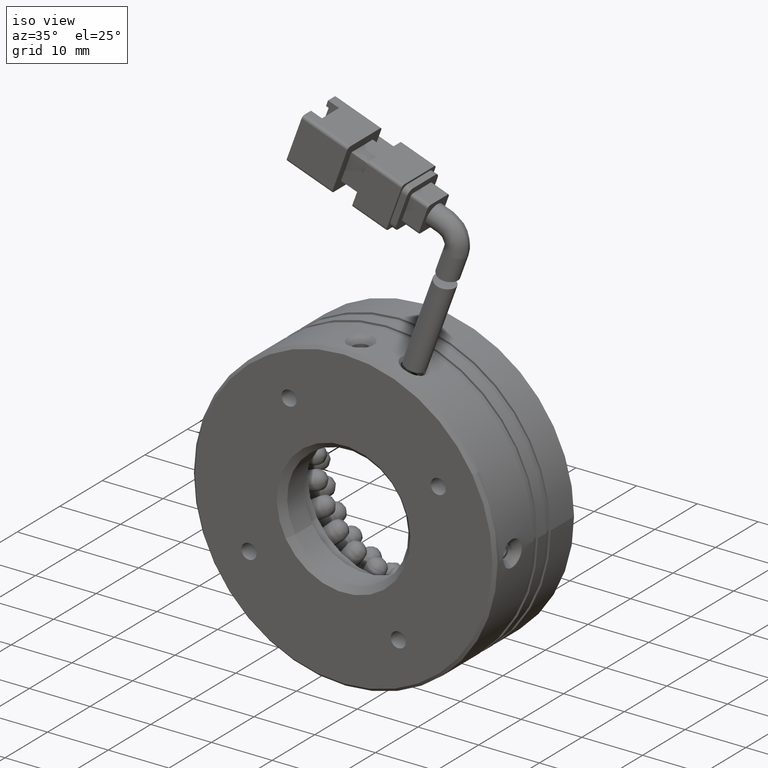
[diagram: clean part render]
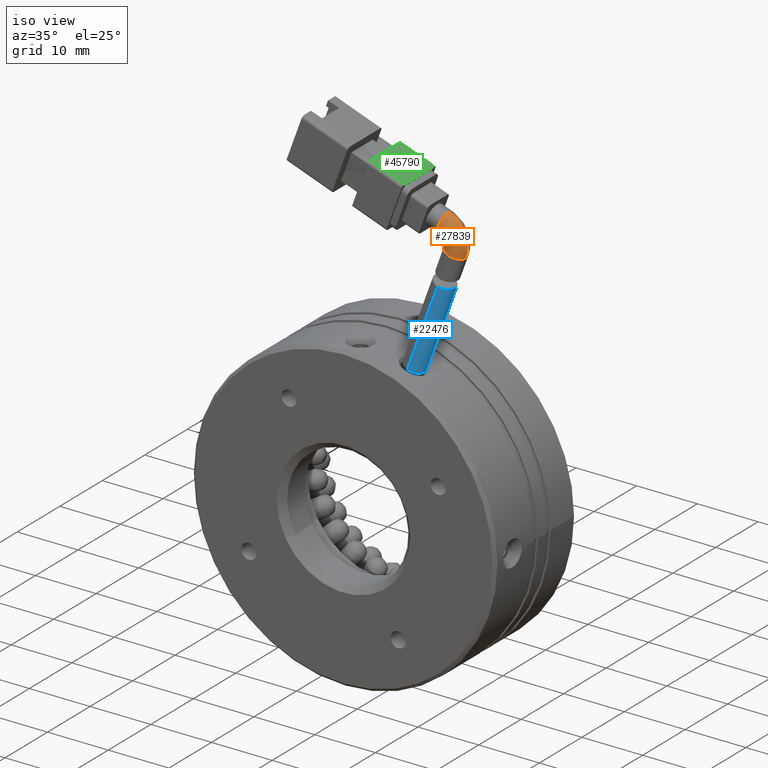
[diagram: same view with three faces highlighted in distinct colors, each labeled with its STEP entity id]
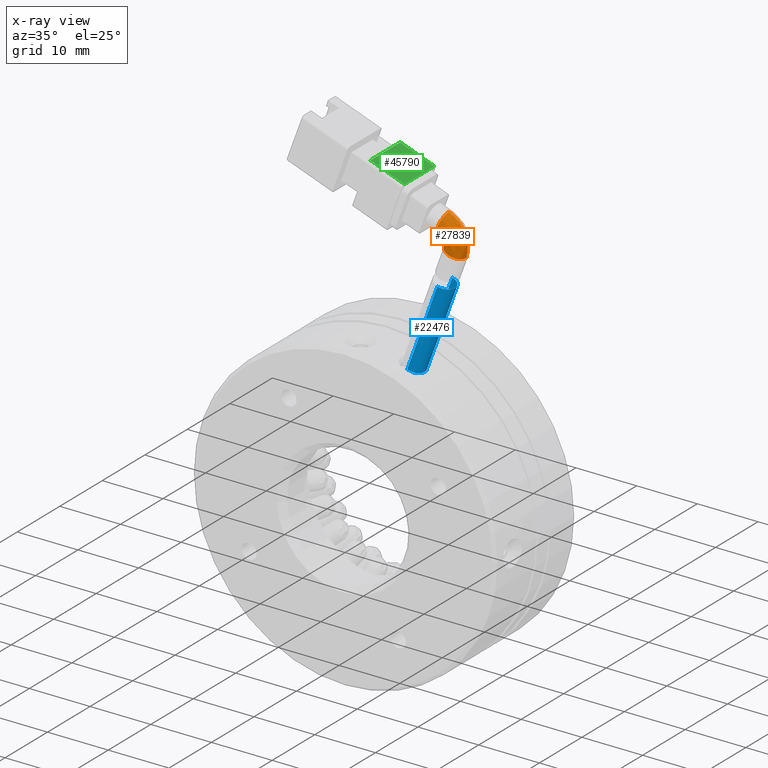
[diagram: x-ray of the same camera — body ghosted, the three highlighted faces saturated]
A machine part, iso view with three faces highlighted in distinct colors.
The next image is the same camera in x-ray (body ghosted, the three faces saturated) — at least one of them is partly hidden behind the body in this view.
Their STEP definitions:

[orange] entity #27839 — the highlighted face is a freeform B-spline surface patch.
#53 = DIRECTION ( 'NONE',  ( 0.3420201433256679900, 0.0000000000000000000, 0.9396926207859087600 ) ) ;
#1484 = CIRCLE ( 'NONE', #28512, 1.749999999999998700 ) ;
#2289 = DIRECTION ( 'NONE',  ( 0.9396926207859074300, 0.0000000000000000000, -0.3420201433256714900 ) ) ;
#2473 = FACE_OUTER_BOUND ( 'NONE', #44223, .T. ) ;
#3284 = DIRECTION ( 'NONE',  ( 0.9396926207859077600, -1.826024711554537600E-016, -0.3420201433256706600 ) ) ;
#3788 = CARTESIAN_POINT ( 'NONE',  ( -80.72699852203379600, 6.627531206657413200, 44.48684414132527100 ) ) ;
#5897 = AXIS2_PLACEMENT_3D ( 'NONE', #30236, #6527, #34197 ) ;
#6527 = DIRECTION ( 'NONE',  ( 1.050341619794772700E-016, 1.000000000000000000, -3.251469816159421900E-016 ) ) ;
#6748 = CIRCLE ( 'NONE', #12573, 4.749999999999990200 ) ;
#7623 = CARTESIAN_POINT ( 'NONE',  ( -76.91524685462025000, 6.627531206657415000, 46.82410219763784900 ) ) ;
#7795 = CARTESIAN_POINT ( 'NONE',  ( -79.72946947351427100, 6.627531206657413200, 43.57277717717888500 ) ) ;
#7959 = VERTEX_POINT ( 'NONE', #32299 ) ;
#8878 = ORIENTED_EDGE ( 'NONE', *, *, #43624, .F. ) ;
#9663 = ORIENTED_EDGE ( 'NONE', *, *, #22127, .T. ) ;
#10190 = CARTESIAN_POINT ( 'NONE',  ( -78.33544583883315200, 4.877531206657419500, 42.28616793536587400 ) ) ;
#10604 = ORIENTED_EDGE ( 'NONE', *, *, #42621, .T. ) ;
#10932 = ORIENTED_EDGE ( 'NONE', *, *, #22602, .T. ) ;
#11605 = CARTESIAN_POINT ( 'NONE',  ( -76.69098375245785300, 6.627531206657413200, 41.68763268454595300 ) ) ;
#11660 = ORIENTED_EDGE ( 'NONE', *, *, #37921, .F. ) ;
#12573 = AXIS2_PLACEMENT_3D ( 'NONE', #50331, #27033, #3284 ) ;
#12606 = DIRECTION ( 'NONE',  ( 0.3420201433256694300, 2.696144201609998500E-016, 0.9396926207859083200 ) ) ;
#14501 = AXIS2_PLACEMENT_3D ( 'NONE', #36361, #12606, #40271 ) ;
#15208 = CARTESIAN_POINT ( 'NONE',  ( -79.52992802039396700, 6.627531206657415900, 47.77576831407594000 ) ) ;
#15539 = CARTESIAN_POINT ( 'NONE',  ( -76.91524685462026400, 3.127531206657413200, 46.82410219763785600 ) ) ;
#19511 = CARTESIAN_POINT ( 'NONE',  ( -76.69098375245783900, 3.127531206657411000, 41.68763268454594600 ) ) ;
#19527 = CIRCLE ( 'NONE', #14501, 1.749999999999998700 ) ;
#22028 = CARTESIAN_POINT ( 'NONE',  ( -80.72699852203379600, 6.627531206657413200, 44.48684414132525700 ) ) ;
#22127 = EDGE_CURVE ( 'NONE', #33238, #29930, #44781, .T. ) ;
#22602 = EDGE_CURVE ( 'NONE', #28983, #7959, #1484, .T. ) ;
#23505 = CARTESIAN_POINT ( 'NONE',  ( -80.03892453104072000, 3.127531206657410600, 44.23640568963104200 ) ) ;
#23733 = DIRECTION ( 'NONE',  ( -0.9396926207859080900, -1.543954929654824700E-016, 0.3420201433256696000 ) ) ;
#24663 = CIRCLE ( 'NONE', #44515, 1.749999999999996200 ) ;
#26057 = DIRECTION ( 'NONE',  ( 0.3420201433256694300, 2.696144201609998500E-016, 0.9396926207859083200 ) ) ;
#27033 = DIRECTION ( 'NONE',  ( 1.050341619794772700E-016, 1.000000000000000000, -3.251469816159421900E-016 ) ) ;
#27543 = CARTESIAN_POINT ( 'NONE',  ( -79.97990792520850800, 3.127531206657410100, 42.88470318618579600 ) ) ;
#27839 = ADVANCED_FACE ( 'NONE', ( #2473 ), #37232, .T. ) ;
#28512 = AXIS2_PLACEMENT_3D ( 'NONE', #49364, #26057, #2289 ) ;
#28983 = VERTEX_POINT ( 'NONE', #10190 ) ;
#29930 = VERTEX_POINT ( 'NONE', #32590 ) ;
#30236 = CARTESIAN_POINT ( 'NONE',  ( -81.15452370119088200, 6.627531206657413200, 43.31222836534288900 ) ) ;
#30866 = VERTEX_POINT ( 'NONE', #48264 ) ;
#31542 = CARTESIAN_POINT ( 'NONE',  ( -80.03892453104070600, 6.627531206657414100, 44.23640568963102700 ) ) ;
#32299 = CARTESIAN_POINT ( 'NONE',  ( -76.69098375245783900, 6.627531206657413200, 41.68763268454596000 ) ) ;
#32590 = CARTESIAN_POINT ( 'NONE',  ( -79.97990792520850800, 6.627531206657412400, 42.88470318618579600 ) ) ;
#33238 = VERTEX_POINT ( 'NONE', #22028 ) ;
#34197 = DIRECTION ( 'NONE',  ( 0.9396926207859085400, 0.0000000000000000000, -0.3420201433256682700 ) ) ;
#35304 = CARTESIAN_POINT ( 'NONE',  ( -75.73931763601976300, 6.627531206657415000, 44.30231385031966300 ) ) ;
#35485 = CARTESIAN_POINT ( 'NONE',  ( -79.97990792520850800, 6.627531206657412400, 42.88470318618579600 ) ) ;
#36361 = CARTESIAN_POINT ( 'NONE',  ( -78.33544583883316600, 6.627531206657413200, 42.28616793536588100 ) ) ;
#37232 =( BOUNDED_SURFACE ( )  B_SPLINE_SURFACE ( 3, 3, ( 
 ( #15208, #7623, #35304, #11605 ),
 ( #39245, #15539, #43136, #19511 ),
 ( #46939, #23505, #50811, #27543 ),
 ( #3788, #31542, #7795, #35485 ) ),
 .UNSPECIFIED., .F., .F., .F. ) 
 B_SPLINE_SURFACE_WITH_KNOTS ( ( 4, 4 ),
 ( 4, 4 ),
 ( 0.0000000000000000000, 1.000000000000000000 ),
 ( 0.0000000000000000000, 1.000000000000000000 ),
 .UNSPECIFIED. ) 
 GEOMETRIC_REPRESENTATION_ITEM ( )  RATIONAL_B_SPLINE_SURFACE ( (
 ( 1.000000000000000000, 0.8047378541243640500, 0.8047378541243640500, 1.000000000000000000),
 ( 0.3333333333333330400, 0.2682459513747877900, 0.2682459513747877900, 0.3333333333333330400),
 ( 0.3333333333333330400, 0.2682459513747877900, 0.2682459513747877900, 0.3333333333333330400),
 ( 1.000000000000000000, 0.8047378541243640500, 0.8047378541243640500, 1.000000000000000000) ) ) 
 REPRESENTATION_ITEM ( '' )  SURFACE ( )  );
#37921 = EDGE_CURVE ( 'NONE', #30866, #7959, #6748, .T. ) ;
#39245 = CARTESIAN_POINT ( 'NONE',  ( -79.52992802039396700, 3.127531206657413700, 47.77576831407595400 ) ) ;
#40271 = DIRECTION ( 'NONE',  ( 0.9396926207859074300, 0.0000000000000000000, -0.3420201433256714900 ) ) ;
#42621 = EDGE_CURVE ( 'NONE', #29930, #28983, #19527, .T. ) ;
#43136 = CARTESIAN_POINT ( 'NONE',  ( -75.73931763601976300, 3.127531206657411900, 44.30231385031967100 ) ) ;
#43624 = EDGE_CURVE ( 'NONE', #33238, #30866, #24663, .T. ) ;
#44223 = EDGE_LOOP ( 'NONE', ( #8878, #9663, #10604, #10932, #11660 ) ) ;
#44515 = AXIS2_PLACEMENT_3D ( 'NONE', #47173, #23733, #53 ) ;
#44781 = CIRCLE ( 'NONE', #5897, 1.249999999999993300 ) ;
#46939 = CARTESIAN_POINT ( 'NONE',  ( -80.72699852203379600, 3.127531206657411000, 44.48684414132526400 ) ) ;
#47173 = CARTESIAN_POINT ( 'NONE',  ( -80.12846327121388900, 6.627531206657396400, 46.13130622770058400 ) ) ;
#48264 = CARTESIAN_POINT ( 'NONE',  ( -79.52992802039395300, 6.627531206657415900, 47.77576831407592600 ) ) ;
#49364 = CARTESIAN_POINT ( 'NONE',  ( -78.33544583883316600, 6.627531206657413200, 42.28616793536588100 ) ) ;
#50331 = CARTESIAN_POINT ( 'NONE',  ( -81.15452370119088200, 6.627531206657414100, 43.31222836534288900 ) ) ;
#50811 = CARTESIAN_POINT ( 'NONE',  ( -79.72946947351427100, 3.127531206657410100, 43.57277717717888500 ) ) ;

[blue] entity #22476 — the highlighted cylindrical surface (edge-blend (fillet) strip) has radius 1.75 mm, axis along (-0.342, 0, -0.9397).
#1174 = DIRECTION ( 'NONE',  ( 0.0000000000000000000, 1.000000000000000000, 0.0000000000000000000 ) ) ;
#2037 = CARTESIAN_POINT ( 'NONE',  ( -78.47614922250744500, 6.509874815227390400, 36.78324273124014400 ) ) ;
#2155 = EDGE_CURVE ( 'NONE', #33630, #32983, #16455, .T. ) ;
#5282 = DIRECTION ( 'NONE',  ( -0.3420201433256689900, 5.055368128938454200E-016, -0.9396926207859083200 ) ) ;
#5854 = CARTESIAN_POINT ( 'NONE',  ( -79.97797880629146100, 8.365999655775503600, 37.09831940194592900 ) ) ;
#6028 = CARTESIAN_POINT ( 'NONE',  ( -78.53310103768696100, 6.171510211347745100, 36.79192329052095500 ) ) ;
#7089 = AXIS2_PLACEMENT_3D ( 'NONE', #48254, #24912, #1174 ) ;
#8257 = CARTESIAN_POINT ( 'NONE',  ( -85.17584870534652500, 4.877531206657430100, 23.49231551964771500 ) ) ;
#9855 = CARTESIAN_POINT ( 'NONE',  ( -79.65468489705470700, 8.288049953543410500, 37.01183205562975300 ) ) ;
#10037 = CARTESIAN_POINT ( 'NONE',  ( -78.65618619207134500, 5.848235308952604700, 36.81134093924311700 ) ) ;
#11259 = EDGE_CURVE ( 'NONE', #38978, #30910, #47283, .T. ) ;
#12658 = ORIENTED_EDGE ( 'NONE', *, *, #44345, .T. ) ;
#13761 = CARTESIAN_POINT ( 'NONE',  ( -79.15235287184967200, 8.027575840333950600, 36.89948725442572900 ) ) ;
#13938 = CARTESIAN_POINT ( 'NONE',  ( -78.83806571824655400, 5.557890920877556900, 36.84183196366012000 ) ) ;
#15082 = CYLINDRICAL_SURFACE ( 'NONE', #34753, 1.749999999999998000 ) ;
#16455 = LINE ( 'NONE', #17709, #36359 ) ;
#17709 = CARTESIAN_POINT ( 'NONE',  ( -78.33544583883316600, 4.877531206657419500, 42.28616793536582500 ) ) ;
#17724 = CARTESIAN_POINT ( 'NONE',  ( -78.83750809931301300, 7.696407631424763800, 36.84173583636051300 ) ) ;
#17902 = CARTESIAN_POINT ( 'NONE',  ( -79.15287984623741100, 5.227382476975830800, 36.89960598612938700 ) ) ;
#18624 = DIRECTION ( 'NONE',  ( -0.3420201433256689900, 5.055368128938454200E-016, -0.9396926207859083200 ) ) ;
#20513 = ORIENTED_EDGE ( 'NONE', *, *, #2155, .T. ) ;
#21166 = DIRECTION ( 'NONE',  ( 0.0000000000000000000, 1.000000000000000000, 0.0000000000000000000 ) ) ;
#21572 = CARTESIAN_POINT ( 'NONE',  ( -80.08967646979063200, 8.377531206657463900, 37.13129223189582000 ) ) ;
#21748 = CARTESIAN_POINT ( 'NONE',  ( -78.65499465565012800, 7.404393894204877900, 36.81114868048921800 ) ) ;
#21918 = CARTESIAN_POINT ( 'NONE',  ( -79.75751195596562600, 4.923622872545909200, 37.03624718374133800 ) ) ;
#22476 = ADVANCED_FACE ( 'NONE', ( #29411 ), #15082, .T. ) ;
#22954 = DIRECTION ( 'NONE',  ( -0.3420201433256689900, 5.055368128938454200E-016, -0.9396926207859083200 ) ) ;
#23461 = CARTESIAN_POINT ( 'NONE',  ( -78.33544583883316600, 8.377531206657415900, 42.28616793536582500 ) ) ;
#24869 = ORIENTED_EDGE ( 'NONE', *, *, #30374, .T. ) ;
#24912 = DIRECTION ( 'NONE',  ( 0.3420201433256689900, -5.055368128938454200E-016, 0.9396926207859083200 ) ) ;
#25084 = CARTESIAN_POINT ( 'NONE',  ( -85.17584870534652500, 8.377531206657426600, 23.49231551964771500 ) ) ;
#25333 = VECTOR ( 'NONE', #22954, 1000.000000000000000 ) ;
#25787 = CARTESIAN_POINT ( 'NONE',  ( -78.47582864145589100, 6.858051943871045900, 36.78319431792112900 ) ) ;
#25965 = CARTESIAN_POINT ( 'NONE',  ( -80.19892404927355800, 4.877531206657422100, 37.16630363052991700 ) ) ;
#29411 = FACE_OUTER_BOUND ( 'NONE', #47256, .T. ) ;
#29507 = ORIENTED_EDGE ( 'NONE', *, *, #11259, .F. ) ;
#29515 = CIRCLE ( 'NONE', #7089, 1.749999999999998000 ) ;
#29748 = CARTESIAN_POINT ( 'NONE',  ( -78.48778869375759400, 6.395813322246223900, 36.78498942640452200 ) ) ;
#30339 = CARTESIAN_POINT ( 'NONE',  ( -80.19892404927591700, 8.377531206657421200, 37.16630363053068500 ) ) ;
#30374 = EDGE_CURVE ( 'NONE', #32983, #30910, #29515, .T. ) ;
#30576 = B_SPLINE_CURVE_WITH_KNOTS ( 'NONE', 3,
 ( #48934, #21572, #5854, #33576, #9855, #37522, #13761, #41409, #17724, #45266, #21748, #49090, #25787, #2037, #29748, #6028, #33730, #10037, #37680, #13938, #41568, #17902, #45425, #21918, #49268, #25965 ),
 .UNSPECIFIED., .F., .F.,
 ( 4, 2, 2, 2, 2, 2, 2, 2, 2, 2, 2, 2, 4 ),
 ( 0.008236626250393999300, 0.008579859904129093200, 0.008923093557864187100, 0.009609560865334368000, 0.009952794519069472400, 0.01029602817280457800, 0.01098249548027479100, 0.01132572913400989700, 0.01166896278774500100, 0.01201219644148010700, 0.01235543009521521100, 0.01304189740268542500, 0.01372836471015563900 ),
 .UNSPECIFIED. ) ;
#30910 = VERTEX_POINT ( 'NONE', #25084 ) ;
#32983 = VERTEX_POINT ( 'NONE', #8257 ) ;
#33576 = CARTESIAN_POINT ( 'NONE',  ( -79.76100545841420300, 8.321176624971334600, 37.03877495418289100 ) ) ;
#33630 = VERTEX_POINT ( 'NONE', #43171 ) ;
#33730 = CARTESIAN_POINT ( 'NONE',  ( -78.56735180066593200, 6.060078002086746600, 36.79719972709502700 ) ) ;
#34753 = AXIS2_PLACEMENT_3D ( 'NONE', #44705, #5282, #21166 ) ;
#36359 = VECTOR ( 'NONE', #18624, 1000.000000000000000 ) ;
#37522 = CARTESIAN_POINT ( 'NONE',  ( -79.34279568488214800, 8.156012198771348300, 36.93783962959280800 ) ) ;
#37680 = CARTESIAN_POINT ( 'NONE',  ( -78.71041186065828300, 5.747832126763881000, 36.82014521073161700 ) ) ;
#38978 = VERTEX_POINT ( 'NONE', #30339 ) ;
#41409 = CARTESIAN_POINT ( 'NONE',  ( -78.90972241037222500, 7.784334306397424200, 36.85440450979163500 ) ) ;
#41568 = CARTESIAN_POINT ( 'NONE',  ( -78.91192963667418800, 5.468306466701589500, 36.85480438216431800 ) ) ;
#43171 = CARTESIAN_POINT ( 'NONE',  ( -80.19892404927355800, 4.877531206657422100, 37.16630363052991700 ) ) ;
#44345 = EDGE_CURVE ( 'NONE', #38978, #33630, #30576, .T. ) ;
#44705 = CARTESIAN_POINT ( 'NONE',  ( -78.33544583883316600, 6.627531206657417700, 42.28616793536582500 ) ) ;
#45266 = CARTESIAN_POINT ( 'NONE',  ( -78.71033265952338800, 7.507046267438309600, 36.82013315747345700 ) ) ;
#45425 = CARTESIAN_POINT ( 'NONE',  ( -79.34579231279533900, 5.097640168910981400, 36.93853014743260800 ) ) ;
#47256 = EDGE_LOOP ( 'NONE', ( #12658, #20513, #24869, #29507 ) ) ;
#47283 = LINE ( 'NONE', #23461, #25333 ) ;
#48254 = CARTESIAN_POINT ( 'NONE',  ( -85.17584870534652500, 6.627531206657428300, 23.49231551964771500 ) ) ;
#48934 = CARTESIAN_POINT ( 'NONE',  ( -80.19892404927591700, 8.377531206657421200, 37.16630363053068500 ) ) ;
#49090 = CARTESIAN_POINT ( 'NONE',  ( -78.52248983030092700, 7.087172751492715900, 36.79006356770946700 ) ) ;
#49268 = CARTESIAN_POINT ( 'NONE',  ( -79.98071002245914900, 4.877531206657442600, 37.09637092981011400 ) ) ;

[green] entity #45790 — the highlighted planar face has unit normal (-0.342, -0, -0.9397).
#35 = VERTEX_POINT ( 'NONE', #13360 ) ;
#300 = LINE ( 'NONE', #2346, #30673 ) ;
#1698 = ORIENTED_EDGE ( 'NONE', *, *, #26767, .F. ) ;
#1716 = DIRECTION ( 'NONE',  ( -0.3420201433256689900, -3.935232398736289600E-016, -0.9396926207859083200 ) ) ;
#2089 = AXIS2_PLACEMENT_3D ( 'NONE', #24729, #1716, #29439 ) ;
#2346 = CARTESIAN_POINT ( 'NONE',  ( -84.39853842262662900, 10.12753120665739300, 51.94219757079818600 ) ) ;
#2501 = ORIENTED_EDGE ( 'NONE', *, *, #47401, .F. ) ;
#3357 = ORIENTED_EDGE ( 'NONE', *, *, #16361, .F. ) ;
#5196 = ORIENTED_EDGE ( 'NONE', *, *, #8421, .F. ) ;
#7703 = VECTOR ( 'NONE', #39006, 1000.000000000000000 ) ;
#8421 = EDGE_CURVE ( 'NONE', #17550, #25473, #10502, .T. ) ;
#10502 = LINE ( 'NONE', #23774, #40782 ) ;
#10727 = CARTESIAN_POINT ( 'NONE',  ( -90.03669414734207500, 10.12753120665740000, 53.99431843075223000 ) ) ;
#13352 = CARTESIAN_POINT ( 'NONE',  ( -90.03669414734210400, 3.127531206657386200, 53.99431843075221600 ) ) ;
#13360 = CARTESIAN_POINT ( 'NONE',  ( -84.39853842262665800, 3.127531206657386200, 51.94219757079820000 ) ) ;
#16361 = EDGE_CURVE ( 'NONE', #25473, #31411, #23932, .T. ) ;
#17550 = VERTEX_POINT ( 'NONE', #13352 ) ;
#23706 = DIRECTION ( 'NONE',  ( -1.047392001341547600E-016, 1.000000000000000000, 1.636536343974965800E-016 ) ) ;
#23774 = CARTESIAN_POINT ( 'NONE',  ( -90.03669414734204700, 10.12753120665740000, 53.99431843075223700 ) ) ;
#23932 = LINE ( 'NONE', #39698, #33289 ) ;
#24729 = CARTESIAN_POINT ( 'NONE',  ( -84.39853842262662900, 10.12753120665739300, 51.94219757079818600 ) ) ;
#25274 = EDGE_LOOP ( 'NONE', ( #1698, #2501, #3357, #5196 ) ) ;
#25473 = VERTEX_POINT ( 'NONE', #10727 ) ;
#26767 = EDGE_CURVE ( 'NONE', #35, #17550, #28784, .T. ) ;
#28557 = PLANE ( 'NONE',  #2089 ) ;
#28784 = LINE ( 'NONE', #46879, #7703 ) ;
#29381 = CARTESIAN_POINT ( 'NONE',  ( -84.39853842262662900, 10.12753120665740200, 51.94219757079818600 ) ) ;
#29439 = DIRECTION ( 'NONE',  ( -1.085111653118884800E-016, 1.000000000000000000, -3.792838505671558600E-016 ) ) ;
#30068 = DIRECTION ( 'NONE',  ( 1.085111653118884800E-016, -1.000000000000000000, 3.792838505671558600E-016 ) ) ;
#30673 = VECTOR ( 'NONE', #30068, 1000.000000000000000 ) ;
#31411 = VERTEX_POINT ( 'NONE', #29381 ) ;
#33289 = VECTOR ( 'NONE', #38845, 1000.000000000000000 ) ;
#38845 = DIRECTION ( 'NONE',  ( 0.9396926207859083200, -2.775557561562882700E-017, -0.3420201433256689900 ) ) ;
#39006 = DIRECTION ( 'NONE',  ( -0.9396926207859083200, 2.775557561562882700E-017, 0.3420201433256689900 ) ) ;
#39698 = CARTESIAN_POINT ( 'NONE',  ( -84.39853842262662900, 10.12753120665741100, 51.94219757079818600 ) ) ;
#40263 = FACE_OUTER_BOUND ( 'NONE', #25274, .T. ) ;
#40782 = VECTOR ( 'NONE', #23706, 1000.000000000000000 ) ;
#45790 = ADVANCED_FACE ( 'NONE', ( #40263 ), #28557, .F. ) ;
#46879 = CARTESIAN_POINT ( 'NONE',  ( -84.39853842262662900, 3.127531206657386200, 51.94219757079818600 ) ) ;
#47401 = EDGE_CURVE ( 'NONE', #31411, #35, #300, .T. ) ;